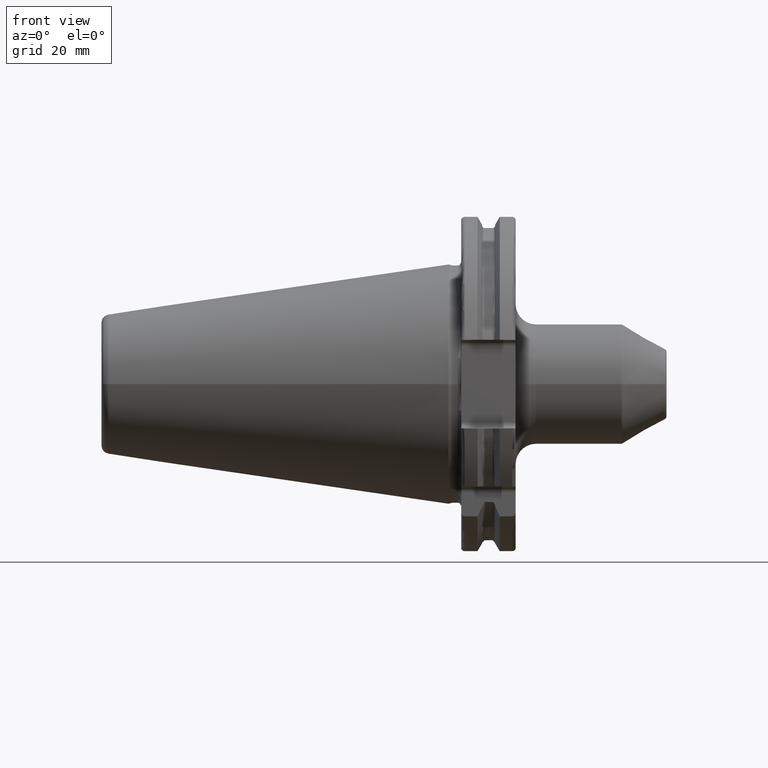
[diagram: clean part render]
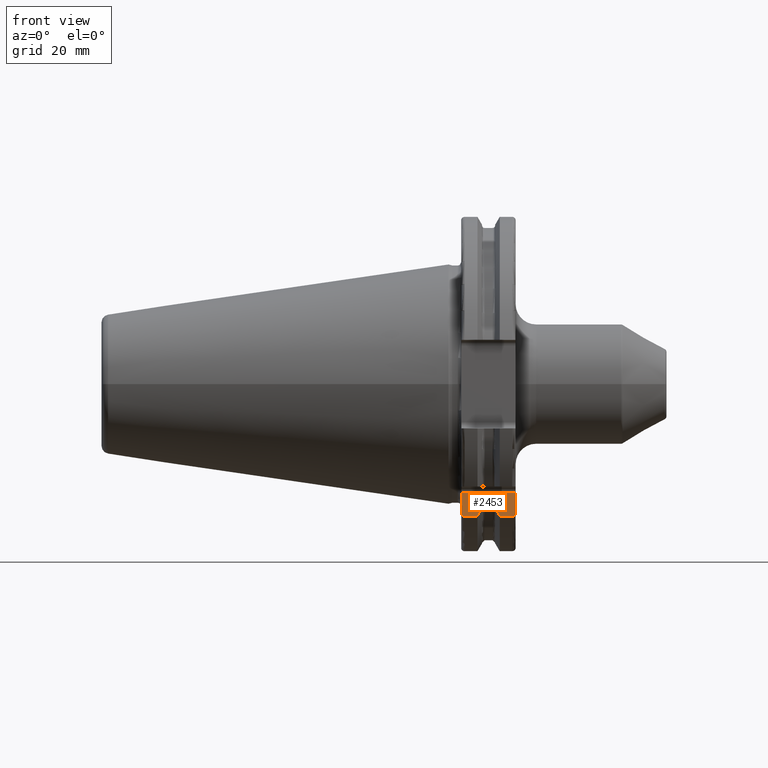
[diagram: same view with one face highlighted and labeled with its STEP entity id]
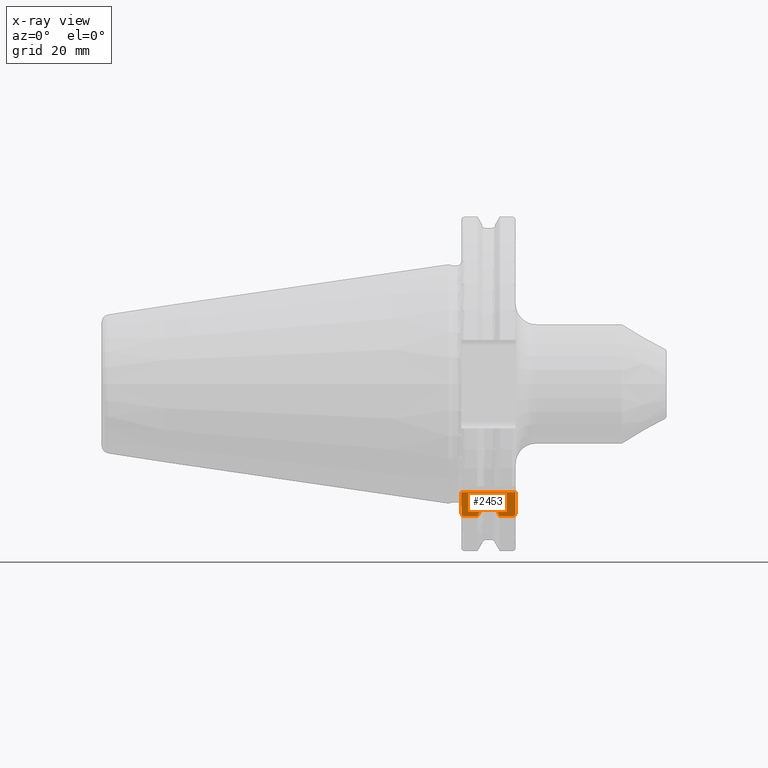
[diagram: x-ray of the same camera — body ghosted, the highlighted face saturated]
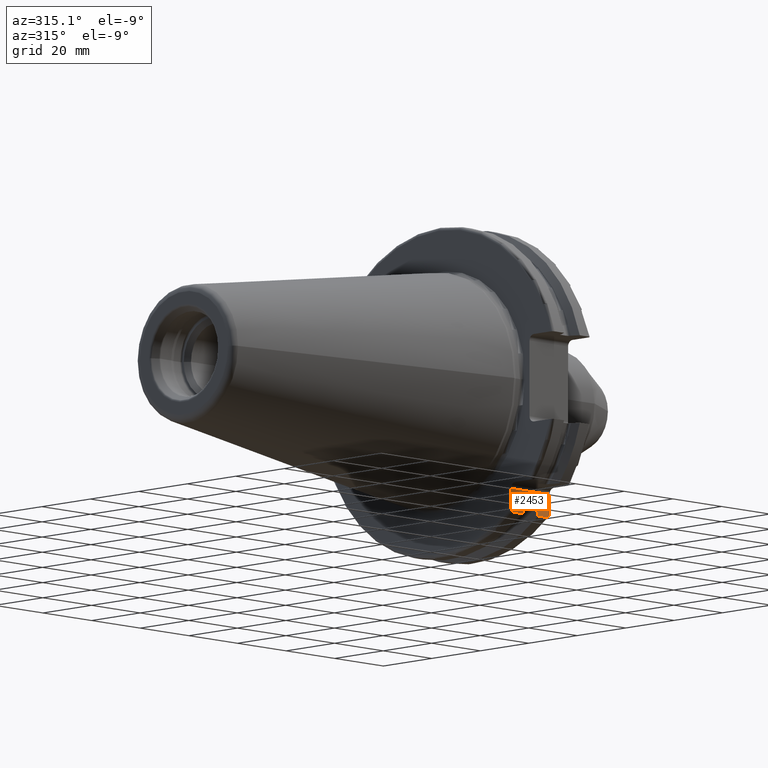
[diagram: same view with one face highlighted and labeled with its STEP entity id]
A machine part, front view. The second image highlights one B-rep face of the part: STEP entity #2453.
The next image is the same camera in x-ray: the body ghosted, the highlighted face saturated — about 0% of this face is hidden behind the body in this view.
A second angle (auxiliary view) of the same face is appended — the face is thin or edge-on in the first view.
In plain terms, the highlighted planar face has unit normal (0, 1, 0).
Its self-contained STEP definition (entity closure, byte-faithful):
#160=DIRECTION('',(0.E0,0.E0,1.E0));
#161=VECTOR('',#160,5.653810627237E0);
#162=CARTESIAN_POINT('',(1.905E1,-2.985E1,-3.725381062724E1));
#163=LINE('',#162,#161);
#215=CARTESIAN_POINT('',(1.905E1,-2.985E1,-3.725381062724E1));
#216=CARTESIAN_POINT('',(1.905E1,-2.985E1,-3.738469466089E1));
#217=CARTESIAN_POINT('',(1.902018122037E1,-2.985E1,-3.763003230112E1));
#218=CARTESIAN_POINT('',(1.889737682100E1,-2.985E1,-3.796247242770E1));
#219=CARTESIAN_POINT('',(1.872069975737E1,-2.985E1,-3.821853261177E1));
#220=CARTESIAN_POINT('',(1.851107723549E1,-2.985E1,-3.839881428419E1));
#221=CARTESIAN_POINT('',(1.828305662300E1,-2.985E1,-3.850407117903E1));
#222=CARTESIAN_POINT('',(1.812863534913E1,-2.985E1,-3.852689198793E1));
#223=CARTESIAN_POINT('',(1.805E1,-2.985E1,-3.852689198793E1));
#292=DIRECTION('',(0.E0,0.E0,1.E0));
#293=VECTOR('',#292,5.653810627237E0);
#294=CARTESIAN_POINT('',(3.2E0,-2.985E1,-3.725381062724E1));
#295=LINE('',#294,#293);
#461=DIRECTION('',(0.E0,1.449028671809E-14,1.E0));
#462=VECTOR('',#461,2.451789773328E-1);
#463=CARTESIAN_POINT('',(9.2625E0,-2.985E1,-3.557278857662E1));
#464=LINE('',#463,#462);
#567=DIRECTION('',(0.E0,0.E0,1.E0));
#568=VECTOR('',#567,2.451789773328E-1);
#569=CARTESIAN_POINT('',(1.30875E1,-2.985E1,-3.557278857662E1));
#570=LINE('',#569,#568);
#619=CARTESIAN_POINT('',(1.30875E1,-2.985E1,-3.532760959929E1));
#620=CARTESIAN_POINT('',(1.30875E1,-2.985E1,-3.525451450288E1));
#621=CARTESIAN_POINT('',(1.307555931213E1,-2.985E1,-3.511047212869E1));
#622=CARTESIAN_POINT('',(1.301774480819E1,-2.985E1,-3.489196434205E1));
#623=CARTESIAN_POINT('',(1.292286194808E1,-2.985E1,-3.469765855180E1));
#624=CARTESIAN_POINT('',(1.279970439155E1,-2.985E1,-3.454031126762E1));
#625=CARTESIAN_POINT('',(1.265795386679E1,-2.985E1,-3.442642342799E1));
#626=CARTESIAN_POINT('',(1.250302276922E1,-2.985E1,-3.435639905385E1));
#627=CARTESIAN_POINT('',(1.239382139926E1,-2.985E1,-3.433988206153E1));
#628=CARTESIAN_POINT('',(1.23375E1,-2.985E1,-3.433988206153E1));
#666=DIRECTION('',(1.E0,0.E0,0.E0));
#667=VECTOR('',#666,2.325E0);
#668=CARTESIAN_POINT('',(1.00125E1,-2.985E1,-3.433988206153E1));
#669=LINE('',#668,#667);
#699=CARTESIAN_POINT('',(1.00125E1,-2.985E1,-3.433988206153E1));
#700=CARTESIAN_POINT('',(9.956154671603E0,-2.985E1,-3.433988206153E1));
#701=CARTESIAN_POINT('',(9.846911666946E0,-2.985E1,-3.435640319848E1));
#702=CARTESIAN_POINT('',(9.691812642670E0,-2.985E1,-3.442655707769E1));
#703=CARTESIAN_POINT('',(9.550161949277E0,-2.985E1,-3.454047557797E1));
#704=CARTESIAN_POINT('',(9.427241444496E0,-2.985E1,-3.469754785666E1));
#705=CARTESIAN_POINT('',(9.332450059952E0,-2.985E1,-3.489147693162E1));
#706=CARTESIAN_POINT('',(9.274516204639E0,-2.985E1,-3.510994882999E1));
#707=CARTESIAN_POINT('',(9.2625E0,-2.985E1,-3.525429153115E1));
#708=CARTESIAN_POINT('',(9.2625E0,-2.985E1,-3.532760959929E1));
#737=DIRECTION('',(-1.E0,0.E0,0.E0));
#738=VECTOR('',#737,1.585E1);
#739=CARTESIAN_POINT('',(1.905E1,-2.985E1,-3.16E1));
#740=LINE('',#739,#738);
#766=CARTESIAN_POINT('',(4.2E0,-2.985E1,-3.852689198793E1));
#767=CARTESIAN_POINT('',(4.121351701574E0,-2.985E1,-3.852689198793E1));
#768=CARTESIAN_POINT('',(3.966904735014E0,-2.985E1,-3.850408165447E1));
#769=CARTESIAN_POINT('',(3.738653969764E0,-2.985E1,-3.839864952437E1));
#770=CARTESIAN_POINT('',(3.529185168070E0,-2.985E1,-3.821837887996E1));
#771=CARTESIAN_POINT('',(3.352580918325E0,-2.985E1,-3.796237987635E1));
#772=CARTESIAN_POINT('',(3.229812788304E0,-2.985E1,-3.762998844337E1));
#773=CARTESIAN_POINT('',(3.2E0,-2.985E1,-3.738468079689E1));
#774=CARTESIAN_POINT('',(3.2E0,-2.985E1,-3.725381062724E1));
#812=DIRECTION('',(1.E0,0.E0,0.E0));
#813=VECTOR('',#812,3.734621614173E0);
#814=CARTESIAN_POINT('',(4.2E0,-2.985E1,-3.852689198793E1));
#815=LINE('',#814,#813);
#830=DIRECTION('',(1.E0,0.E0,0.E0));
#831=VECTOR('',#830,3.634621614173E0);
#832=CARTESIAN_POINT('',(1.441537838583E1,-2.985E1,-3.852689198793E1));
#833=LINE('',#832,#831);
#877=CARTESIAN_POINT('',(9.2625E0,-2.985E1,-3.557278857662E1));
#878=CARTESIAN_POINT('',(9.122796459387E0,-2.985E1,-3.588866659244E1));
#879=CARTESIAN_POINT('',(8.838204990616E0,-2.985E1,-3.652866450573E1));
#880=CARTESIAN_POINT('',(8.396067032347E0,-2.985E1,-3.751242476101E1));
#881=CARTESIAN_POINT('',(8.090246731407E0,-2.985E1,-3.818590359837E1));
#882=CARTESIAN_POINT('',(7.934621614173E0,-2.985E1,-3.852689198793E1));
#910=CARTESIAN_POINT('',(1.30875E1,-2.985E1,-3.557278857662E1));
#911=CARTESIAN_POINT('',(1.322720354061E1,-2.985E1,-3.588866659244E1));
#912=CARTESIAN_POINT('',(1.351179500938E1,-2.985E1,-3.652866450573E1));
#913=CARTESIAN_POINT('',(1.395393296765E1,-2.985E1,-3.751242476101E1));
#914=CARTESIAN_POINT('',(1.425975326859E1,-2.985E1,-3.818590359837E1));
#915=CARTESIAN_POINT('',(1.441537838583E1,-2.985E1,-3.852689198793E1));
#1537=CARTESIAN_POINT('',(9.2625E0,-2.985E1,-3.557278857662E1));
#1538=VERTEX_POINT('',#1537);
#1539=CARTESIAN_POINT('',(9.2625E0,-2.985E1,-3.532760959929E1));
#1540=VERTEX_POINT('',#1539);
#1541=CARTESIAN_POINT('',(1.00125E1,-2.985E1,-3.433988206153E1));
#1542=VERTEX_POINT('',#1541);
#1543=CARTESIAN_POINT('',(1.23375E1,-2.985E1,-3.433988206153E1));
#1544=VERTEX_POINT('',#1543);
#1545=CARTESIAN_POINT('',(1.30875E1,-2.985E1,-3.532760959929E1));
#1546=VERTEX_POINT('',#1545);
#1547=CARTESIAN_POINT('',(1.30875E1,-2.985E1,-3.557278857662E1));
#1548=VERTEX_POINT('',#1547);
#1553=CARTESIAN_POINT('',(1.905E1,-2.985E1,-3.725381062724E1));
#1554=VERTEX_POINT('',#1553);
#1555=CARTESIAN_POINT('',(1.805E1,-2.985E1,-3.852689198793E1));
#1556=VERTEX_POINT('',#1555);
#1557=CARTESIAN_POINT('',(4.2E0,-2.985E1,-3.852689198793E1));
#1558=VERTEX_POINT('',#1557);
#1559=CARTESIAN_POINT('',(3.2E0,-2.985E1,-3.725381062724E1));
#1560=VERTEX_POINT('',#1559);
#1594=CARTESIAN_POINT('',(1.905E1,-2.985E1,-3.16E1));
#1596=VERTEX_POINT('',#1594);
#1597=CARTESIAN_POINT('',(3.2E0,-2.985E1,-3.16E1));
#1599=VERTEX_POINT('',#1597);
#1652=VERTEX_POINT('',#915);
#1653=VERTEX_POINT('',#882);
#2426=CARTESIAN_POINT('',(1.905E1,-2.985E1,-3.985E1));
#2427=DIRECTION('',(0.E0,1.E0,0.E0));
#2428=DIRECTION('',(0.E0,0.E0,1.E0));
#2429=AXIS2_PLACEMENT_3D('',#2426,#2427,#2428);
#2430=PLANE('',#2429);
#2432=ORIENTED_EDGE('',*,*,#2431,.F.);
#2433=ORIENTED_EDGE('',*,*,#1866,.F.);
#2434=ORIENTED_EDGE('',*,*,#1959,.T.);
#2436=ORIENTED_EDGE('',*,*,#2435,.F.);
#2438=ORIENTED_EDGE('',*,*,#2437,.F.);
#2439=ORIENTED_EDGE('',*,*,#2310,.T.);
#2440=ORIENTED_EDGE('',*,*,#2352,.T.);
#2441=ORIENTED_EDGE('',*,*,#2380,.F.);
#2442=ORIENTED_EDGE('',*,*,#2407,.T.);
#2443=ORIENTED_EDGE('',*,*,#2228,.F.);
#2445=ORIENTED_EDGE('',*,*,#2444,.T.);
#2447=ORIENTED_EDGE('',*,*,#2446,.F.);
#2449=ORIENTED_EDGE('',*,*,#2448,.T.);
#2450=ORIENTED_EDGE('',*,*,#2044,.T.);
#2451=EDGE_LOOP('',(#2432,#2433,#2434,#2436,#2438,#2439,#2440,#2441,#2442,#2443,
#2445,#2447,#2449,#2450));
#2452=FACE_OUTER_BOUND('',#2451,.F.);
#2453=ADVANCED_FACE('',(#2452),#2430,.F.);
#224=B_SPLINE_CURVE_WITH_KNOTS('',3,(#215,#216,#217,#218,#219,#220,#221,#222,
#223),.UNSPECIFIED.,.F.,.F.,(4,1,1,1,1,1,4),(0.E0,1.666666666667E-1,
3.333333333333E-1,5.E-1,6.666666666667E-1,8.333333333333E-1,1.E0),
.UNSPECIFIED.);
#629=B_SPLINE_CURVE_WITH_KNOTS('',3,(#619,#620,#621,#622,#623,#624,#625,#626,
#627,#628),.UNSPECIFIED.,.F.,.F.,(4,1,1,1,1,1,1,4),(0.E0,1.428571428571E-1,
2.857142857143E-1,4.285714285714E-1,5.714285714286E-1,7.142857142857E-1,
8.571428571429E-1,1.E0),.UNSPECIFIED.);
#709=B_SPLINE_CURVE_WITH_KNOTS('',3,(#699,#700,#701,#702,#703,#704,#705,#706,
#707,#708),.UNSPECIFIED.,.F.,.F.,(4,1,1,1,1,1,1,4),(0.E0,1.428571428571E-1,
2.857142857143E-1,4.285714285714E-1,5.714285714286E-1,7.142857142857E-1,
8.571428571429E-1,1.E0),.UNSPECIFIED.);
#775=B_SPLINE_CURVE_WITH_KNOTS('',3,(#766,#767,#768,#769,#770,#771,#772,#773,
#774),.UNSPECIFIED.,.F.,.F.,(4,1,1,1,1,1,4),(0.E0,1.666666666667E-1,
3.333333333333E-1,5.E-1,6.666666666667E-1,8.333333333333E-1,1.E0),
.UNSPECIFIED.);
#883=B_SPLINE_CURVE_WITH_KNOTS('',3,(#877,#878,#879,#880,#881,#882),
.UNSPECIFIED.,.F.,.F.,(4,1,1,4),(0.E0,3.333333333333E-1,6.666666666667E-1,1.E0),
.UNSPECIFIED.);
#916=B_SPLINE_CURVE_WITH_KNOTS('',3,(#910,#911,#912,#913,#914,#915),
.UNSPECIFIED.,.F.,.F.,(4,1,1,4),(0.E0,3.333333333333E-1,6.666666666667E-1,1.E0),
.UNSPECIFIED.);
#1866=EDGE_CURVE('',#1554,#1596,#163,.T.);
#1959=EDGE_CURVE('',#1554,#1556,#224,.T.);
#2044=EDGE_CURVE('',#1560,#1599,#295,.T.);
#2228=EDGE_CURVE('',#1538,#1540,#464,.T.);
#2310=EDGE_CURVE('',#1548,#1546,#570,.T.);
#2352=EDGE_CURVE('',#1546,#1544,#629,.T.);
#2380=EDGE_CURVE('',#1542,#1544,#669,.T.);
#2407=EDGE_CURVE('',#1542,#1540,#709,.T.);
#2431=EDGE_CURVE('',#1596,#1599,#740,.T.);
#2435=EDGE_CURVE('',#1652,#1556,#833,.T.);
#2437=EDGE_CURVE('',#1548,#1652,#916,.T.);
#2444=EDGE_CURVE('',#1538,#1653,#883,.T.);
#2446=EDGE_CURVE('',#1558,#1653,#815,.T.);
#2448=EDGE_CURVE('',#1558,#1560,#775,.T.);